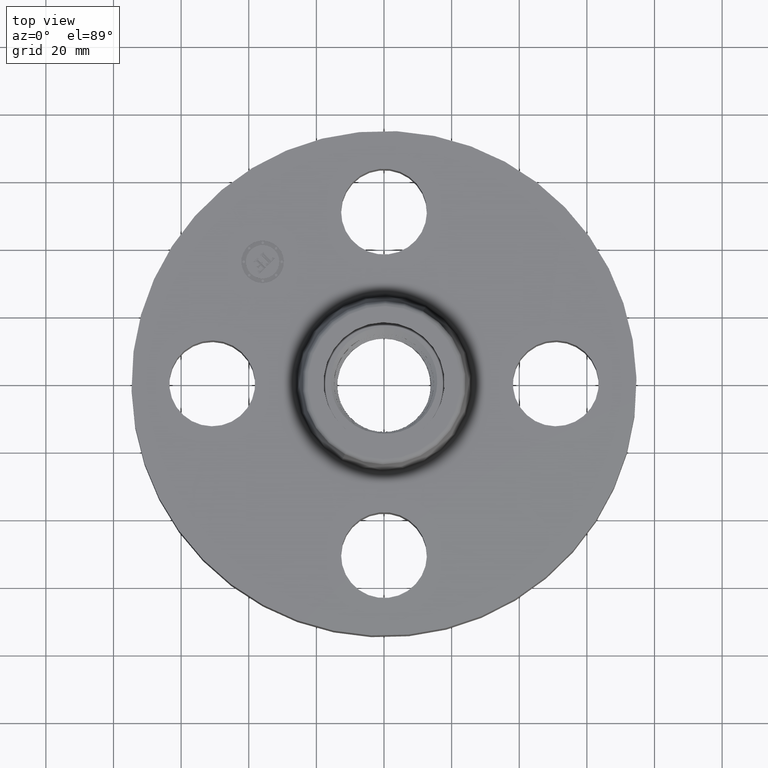
[diagram: clean part render]
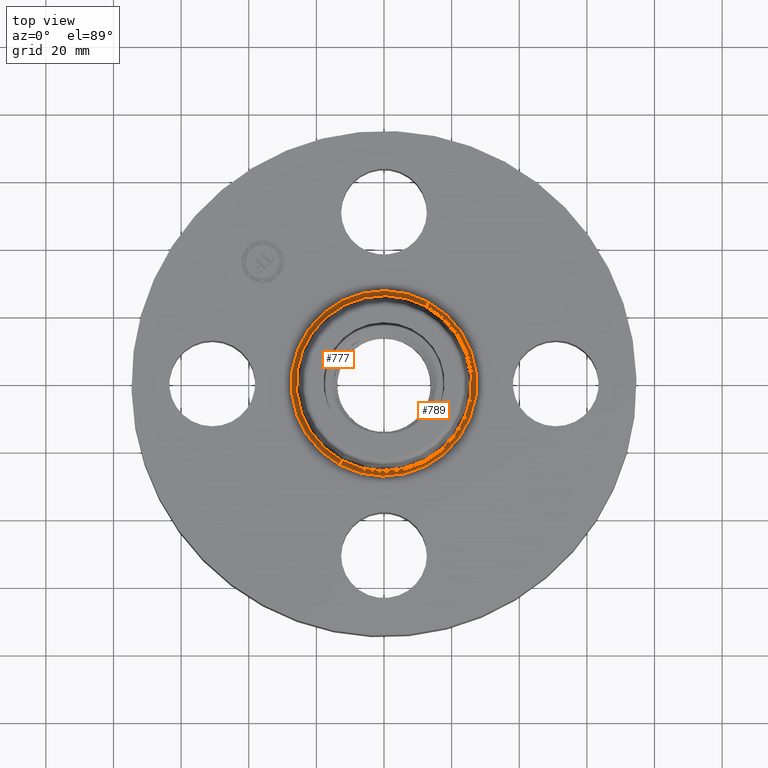
[diagram: same view with one multi-face feature highlighted, each face labeled with its STEP entity id]
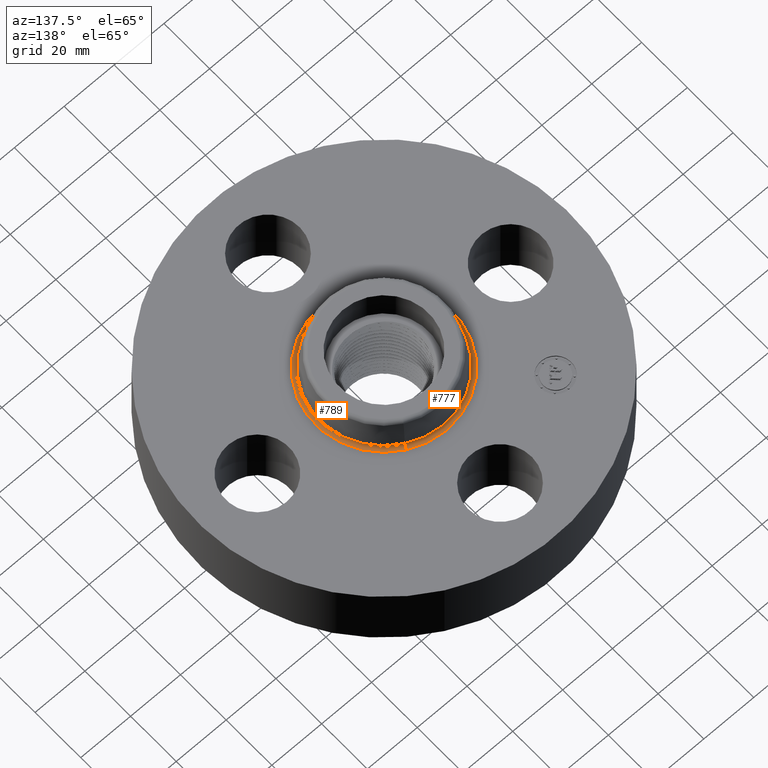
[diagram: same view with one multi-face feature highlighted, each face labeled with its STEP entity id]
A machine part, top view. The highlighted faces form ONE feature: a constant-radius fillet chain: 2 tangent blend faces with common blend radius 1.524 mm. The faces share edges in the B-rep.
A second angle (auxiliary view) of the same feature is appended — it is thin or edge-on in the first view.
Their STEP definitions:
[1] entity #777 (Torus):
#711=AXIS2_PLACEMENT_3D('Circle Axis2P3D',#709,#710,$) ;
#750=AXIS2_PLACEMENT_3D('Torus Axis2P3D',#747,#748,#749) ;
#754=AXIS2_PLACEMENT_3D('Circle Axis2P3D',#752,#753,$) ;
#763=AXIS2_PLACEMENT_3D('Circle Axis2P3D',#761,#762,$) ;
#768=AXIS2_PLACEMENT_3D('Circle Axis2P3D',#766,#767,$) ;
#709=CARTESIAN_POINT('Axis2P3D Location',(0.,0.,1.16958110934)) ;
#713=CARTESIAN_POINT('Vertex',(-0.489616933077,-0.89623778434,1.16958110934)) ;
#715=CARTESIAN_POINT('Vertex',(0.489616933077,0.89623778434,1.16958110934)) ;
#747=CARTESIAN_POINT('Axis2P3D Location',(0.,0.,1.18)) ;
#752=CARTESIAN_POINT('Axis2P3D Location',(0.,0.,1.12)) ;
#756=CARTESIAN_POINT('Vertex',(-0.517945452322,-0.948092790991,1.12)) ;
#758=CARTESIAN_POINT('Vertex',(0.517945452322,0.948092790991,1.12)) ;
#761=CARTESIAN_POINT('Axis2P3D Location',(-0.517945452322,-0.948092790991,1.18)) ;
#766=CARTESIAN_POINT('Axis2P3D Location',(0.517945452322,0.948092790991,1.18)) ;
#710=DIRECTION('Axis2P3D Direction',(0.,0.,-0.0393700787402)) ;
#748=DIRECTION('Axis2P3D Direction',(0.,0.,-0.0393700787402)) ;
#749=DIRECTION('Axis2P3D XDirection',(0.0188750212049,0.0345504945626,0.)) ;
#753=DIRECTION('Axis2P3D Direction',(0.,0.,-0.0393700787402)) ;
#762=DIRECTION('Axis2P3D Direction',(0.0345504945626,-0.0188750212049,0.)) ;
#767=DIRECTION('Axis2P3D Direction',(-0.0345504945626,0.0188750212049,0.)) ;
#772=ORIENTED_EDGE('',*,*,#760,.F.) ;
#773=ORIENTED_EDGE('',*,*,#765,.T.) ;
#774=ORIENTED_EDGE('',*,*,#717,.T.) ;
#775=ORIENTED_EDGE('',*,*,#770,.F.) ;
#777=ADVANCED_FACE('PartBody',(#776),#751,.F.) ;
#712=CIRCLE('generated circle',#711,1.02125751269) ;
#755=CIRCLE('generated circle',#754,1.08034597787) ;
#764=CIRCLE('generated circle',#763,0.0600000000002) ;
#769=CIRCLE('generated circle',#768,0.0600000000002) ;
#751=TOROIDAL_SURFACE('homeo Torus',#750,1.08034597787,0.0600000000002) ;
#717=EDGE_CURVE('',#714,#716,#712,.T.) ;
#760=EDGE_CURVE('',#757,#759,#755,.T.) ;
#765=EDGE_CURVE('',#757,#714,#764,.T.) ;
#770=EDGE_CURVE('',#759,#716,#769,.T.) ;
#771=EDGE_LOOP('',(#772,#773,#774,#775)) ;
#776=FACE_OUTER_BOUND('',#771,.T.) ;
#714=VERTEX_POINT('',#713) ;
#716=VERTEX_POINT('',#715) ;
#757=VERTEX_POINT('',#756) ;
#759=VERTEX_POINT('',#758) ;
[2] entity #789 (Torus):
#737=AXIS2_PLACEMENT_3D('Circle Axis2P3D',#735,#736,$) ;
#750=AXIS2_PLACEMENT_3D('Torus Axis2P3D',#747,#748,#749) ;
#763=AXIS2_PLACEMENT_3D('Circle Axis2P3D',#761,#762,$) ;
#768=AXIS2_PLACEMENT_3D('Circle Axis2P3D',#766,#767,$) ;
#780=AXIS2_PLACEMENT_3D('Circle Axis2P3D',#778,#779,$) ;
#713=CARTESIAN_POINT('Vertex',(-0.489616933077,-0.89623778434,1.16958110934)) ;
#715=CARTESIAN_POINT('Vertex',(0.489616933077,0.89623778434,1.16958110934)) ;
#735=CARTESIAN_POINT('Axis2P3D Location',(0.,0.,1.16958110934)) ;
#747=CARTESIAN_POINT('Axis2P3D Location',(0.,0.,1.18)) ;
#756=CARTESIAN_POINT('Vertex',(-0.517945452322,-0.948092790991,1.12)) ;
#758=CARTESIAN_POINT('Vertex',(0.517945452322,0.948092790991,1.12)) ;
#761=CARTESIAN_POINT('Axis2P3D Location',(-0.517945452322,-0.948092790991,1.18)) ;
#766=CARTESIAN_POINT('Axis2P3D Location',(0.517945452322,0.948092790991,1.18)) ;
#778=CARTESIAN_POINT('Axis2P3D Location',(0.,0.,1.12)) ;
#736=DIRECTION('Axis2P3D Direction',(0.,0.,-0.0393700787402)) ;
#748=DIRECTION('Axis2P3D Direction',(0.,0.,-0.0393700787402)) ;
#749=DIRECTION('Axis2P3D XDirection',(0.0188750212049,0.0345504945626,0.)) ;
#762=DIRECTION('Axis2P3D Direction',(0.0345504945626,-0.0188750212049,0.)) ;
#767=DIRECTION('Axis2P3D Direction',(-0.0345504945626,0.0188750212049,0.)) ;
#779=DIRECTION('Axis2P3D Direction',(0.,0.,-0.0393700787402)) ;
#784=ORIENTED_EDGE('',*,*,#782,.F.) ;
#785=ORIENTED_EDGE('',*,*,#770,.T.) ;
#786=ORIENTED_EDGE('',*,*,#739,.T.) ;
#787=ORIENTED_EDGE('',*,*,#765,.F.) ;
#789=ADVANCED_FACE('PartBody',(#788),#751,.F.) ;
#738=CIRCLE('generated circle',#737,1.02125751269) ;
#764=CIRCLE('generated circle',#763,0.0600000000002) ;
#769=CIRCLE('generated circle',#768,0.0600000000002) ;
#781=CIRCLE('generated circle',#780,1.08034597787) ;
#751=TOROIDAL_SURFACE('homeo Torus',#750,1.08034597787,0.0600000000002) ;
#739=EDGE_CURVE('',#716,#714,#738,.T.) ;
#765=EDGE_CURVE('',#757,#714,#764,.T.) ;
#770=EDGE_CURVE('',#759,#716,#769,.T.) ;
#782=EDGE_CURVE('',#759,#757,#781,.T.) ;
#783=EDGE_LOOP('',(#784,#785,#786,#787)) ;
#788=FACE_OUTER_BOUND('',#783,.T.) ;
#714=VERTEX_POINT('',#713) ;
#716=VERTEX_POINT('',#715) ;
#757=VERTEX_POINT('',#756) ;
#759=VERTEX_POINT('',#758) ;